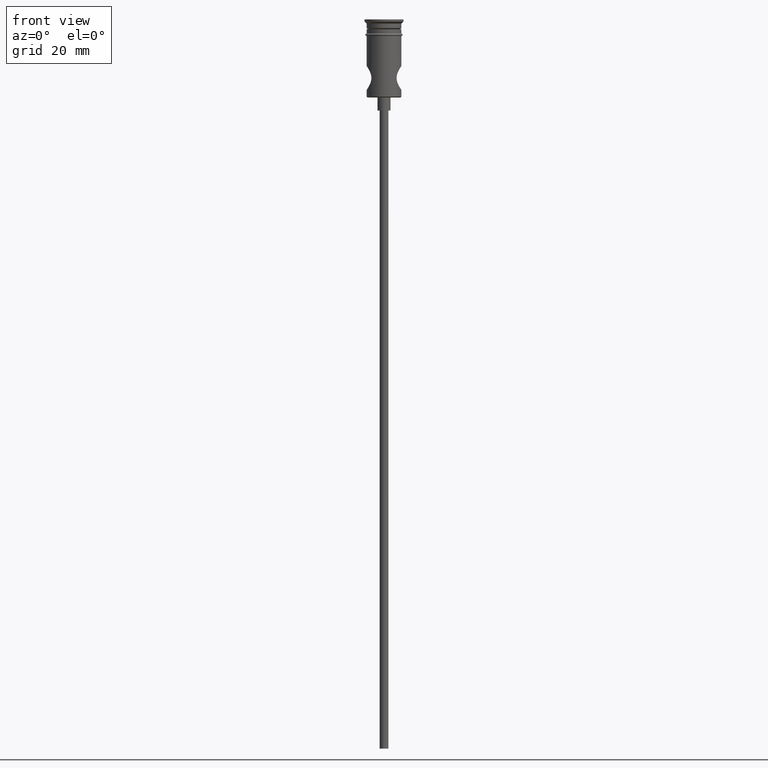
[diagram: clean part render]
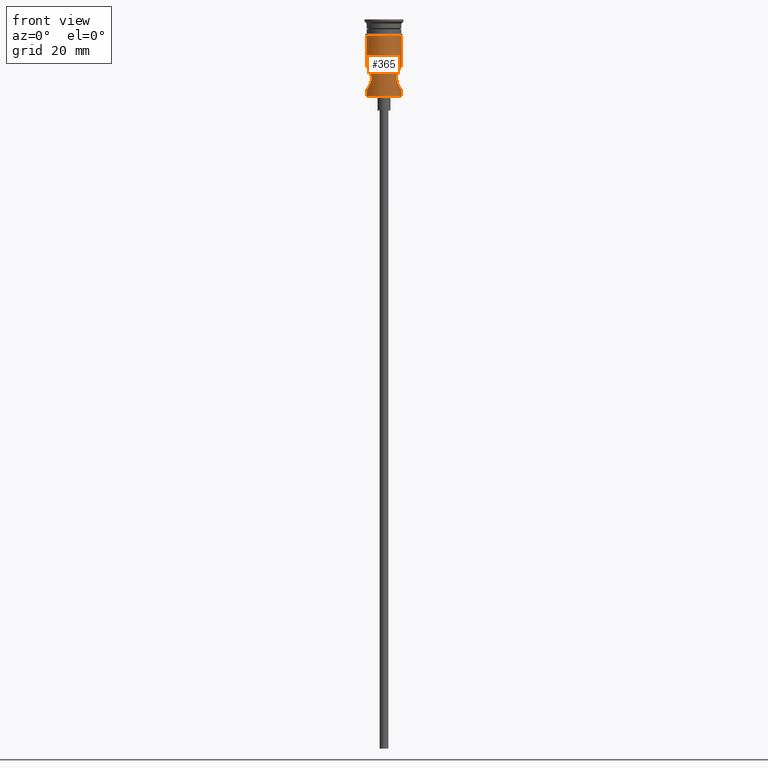
[diagram: same view with one face highlighted and labeled with its STEP entity id]
A machine part, front view. The second image highlights one B-rep face of the part: STEP entity #365.
In plain terms, the highlighted cylindrical surface (edge-blend (fillet) strip) has radius 4 mm, axis along (-0, -0, 1).
Its self-contained STEP definition (entity closure, byte-faithful):
#9 = CARTESIAN_POINT ( 'NONE',  ( 3.560899448792282929, -1.827460818524927255, -15.56227107929443143 ) ) ;
#42 = CYLINDRICAL_SURFACE ( 'NONE', #458, 4.000000000000000000 ) ;
#49 = CARTESIAN_POINT ( 'NONE',  ( -4.000000000000000000, -1.082428048190059701E-15, -16.25000000000000000 ) ) ;
#51 = CARTESIAN_POINT ( 'NONE',  ( 3.152150098412337176, -2.464125728423233408, -12.26627202958722052 ) ) ;
#88 = CARTESIAN_POINT ( 'NONE',  ( 3.805236129597703076, -1.244842054105928630, -15.95868906918809493 ) ) ;
#98 = CARTESIAN_POINT ( 'NONE',  ( 0.000000000000000000, 0.000000000000000000, -17.80000000000001137 ) ) ;
#99 = CARTESIAN_POINT ( 'NONE',  ( -3.629467468971919075, -1.704948656411081842, -11.31407162498316943 ) ) ;
#110 = CARTESIAN_POINT ( 'NONE',  ( -3.423476604098442788, -2.073510542563412162, -15.31471501676682934 ) ) ;
#112 = CARTESIAN_POINT ( 'NONE',  ( 3.356081183987128735, -2.194354300722539897, -15.19340172252557331 ) ) ;
#117 = CARTESIAN_POINT ( 'NONE',  ( -3.935590311853631729, -0.7380237449173248088, -10.84441589138536699 ) ) ;
#118 = CARTESIAN_POINT ( 'NONE',  ( -3.352571063512280070, -2.184990303520331079, -15.17882514829168805 ) ) ;
#125 = CARTESIAN_POINT ( 'NONE',  ( 3.897876258935293325, -0.9143382370299266704, -16.09976330978815895 ) ) ;
#147 = VERTEX_POINT ( 'NONE', #1293 ) ;
#161 = CARTESIAN_POINT ( 'NONE',  ( 4.000000000000000000, 0.000000000000000000, 0.000000000000000000 ) ) ;
#195 = DIRECTION ( 'NONE',  ( -0.000000000000000000, -0.000000000000000000, 1.000000000000000000 ) ) ;
#200 = CARTESIAN_POINT ( 'NONE',  ( -4.000000000000000000, 4.898875736391346734E-16, -10.75000000000000000 ) ) ;
#232 = ORIENTED_EDGE ( 'NONE', *, *, #1265, .F. ) ;
#233 = CARTESIAN_POINT ( 'NONE',  ( -3.040338712675894062, -2.600841183461505501, -14.41086802801371292 ) ) ;
#246 = CARTESIAN_POINT ( 'NONE',  ( -3.986569257409959377, -0.3752541894392961708, -10.76943406977662754 ) ) ;
#254 = VERTEX_POINT ( 'NONE', #1364 ) ;
#262 = DIRECTION ( 'NONE',  ( -0.000000000000000000, -0.000000000000000000, 1.000000000000000000 ) ) ;
#263 = DIRECTION ( 'NONE',  ( -0.000000000000000000, -0.000000000000000000, 1.000000000000000000 ) ) ;
#266 = CARTESIAN_POINT ( 'NONE',  ( 2.990619957445074029, -2.656825094483681760, -12.76649644725104515 ) ) ;
#278 = CARTESIAN_POINT ( 'NONE',  ( 3.986797965649419240, -0.3731349247757173027, -10.76909995728804681 ) ) ;
#284 = CARTESIAN_POINT ( 'NONE',  ( 3.039104102417667708, -2.602270566844717692, -12.59325405576322510 ) ) ;
#322 = CARTESIAN_POINT ( 'NONE',  ( 4.000000000000000000, 0.000000000000000000, 0.000000000000000000 ) ) ;
#323 = CARTESIAN_POINT ( 'NONE',  ( -3.758839784380466842, -1.410695475187754955, -15.88804927343668005 ) ) ;
#357 = CARTESIAN_POINT ( 'NONE',  ( -3.898332255911910238, -0.9125459904059147753, -16.10045093770546742 ) ) ;
#365 = ADVANCED_FACE ( 'NONE', ( #1025 ), #42, .T. ) ;
#368 = CARTESIAN_POINT ( 'NONE',  ( 3.758308184967917409, -1.412635338666774265, -11.11275848598740801 ) ) ;
#374 = VERTEX_POINT ( 'NONE', #200 ) ;
#376 = LINE ( 'NONE', #826, #1166 ) ;
#393 = CARTESIAN_POINT ( 'NONE',  ( 3.999999999999999112, -0.1858078852913923329, -10.75000000000000178 ) ) ;
#400 = CARTESIAN_POINT ( 'NONE',  ( -4.000000000000000000, -1.082428048190059701E-15, -16.25000000000000000 ) ) ;
#401 = VECTOR ( 'NONE', #1020, 1000.000000000000000 ) ;
#414 = CARTESIAN_POINT ( 'NONE',  ( -2.990853264625744412, -2.656566527895887209, -12.76540023414572644 ) ) ;
#424 = LINE ( 'NONE', #322, #574 ) ;
#432 = CARTESIAN_POINT ( 'NONE',  ( 3.628318813380886798, -1.691230916824618014, -15.67560887377282519 ) ) ;
#438 = CARTESIAN_POINT ( 'NONE',  ( 3.750403272509822639, -1.399798099407463248, -15.87362618509271073 ) ) ;
#453 = DIRECTION ( 'NONE',  ( -0.000000000000000000, -0.000000000000000000, 1.000000000000000000 ) ) ;
#458 = AXIS2_PLACEMENT_3D ( 'NONE', #918, #263, #755 ) ;
#484 = CARTESIAN_POINT ( 'NONE',  ( 3.627876891014071070, -1.707999379360746195, -11.31682734715131922 ) ) ;
#500 = CARTESIAN_POINT ( 'NONE',  ( -4.000000000000000000, 4.898587196589412829E-16, -3.799999999999998046 ) ) ;
#513 = CARTESIAN_POINT ( 'NONE',  ( 3.040558828618885379, -2.600578980709926213, -14.41155145748494881 ) ) ;
#515 = CARTESIAN_POINT ( 'NONE',  ( -2.904789332996817297, -2.749945260648944512, -13.68760613050835673 ) ) ;
#522 = EDGE_CURVE ( 'NONE', #708, #1162, #1362, .T. ) ;
#534 = CARTESIAN_POINT ( 'NONE',  ( -4.000000000000000000, -0.1860873315878985856, -10.74999999999999645 ) ) ;
#539 = CARTESIAN_POINT ( 'NONE',  ( -3.217982150421164089, -2.378761493287735451, -14.89073011870239327 ) ) ;
#542 = CARTESIAN_POINT ( 'NONE',  ( 2.904838189979199292, -2.749893654545319421, -13.68954574786105383 ) ) ;
#547 = CARTESIAN_POINT ( 'NONE',  ( 2.923675419418522381, -2.730320526303180895, -13.87632886117500952 ) ) ;
#549 = CIRCLE ( 'NONE', #1303, 4.000000000000000000 ) ;
#554 = CARTESIAN_POINT ( 'NONE',  ( 3.999999999999999112, -0.1884943161018475810, -16.25000000000000000 ) ) ;
#563 = CARTESIAN_POINT ( 'NONE',  ( -3.936195930800992837, -0.7345946403777908751, -16.15647894591264588 ) ) ;
#570 = CARTESIAN_POINT ( 'NONE',  ( 0.000000000000000000, 0.000000000000000000, -3.799999999999998046 ) ) ;
#574 = VECTOR ( 'NONE', #262, 1000.000000000000000 ) ;
#612 = DIRECTION ( 'NONE',  ( -1.000000000000000000, 0.000000000000000000, 0.000000000000000000 ) ) ;
#623 = ORIENTED_EDGE ( 'NONE', *, *, #1321, .F. ) ;
#636 = CARTESIAN_POINT ( 'NONE',  ( -3.422612705757198448, -2.075016451433645770, -11.68686323689984974 ) ) ;
#638 = CARTESIAN_POINT ( 'NONE',  ( -2.923708177251532092, -2.730282545867590116, -13.87638281426623799 ) ) ;
#659 = CARTESIAN_POINT ( 'NONE',  ( -2.991204009610981096, -2.656164689714076044, -14.23545628303815924 ) ) ;
#708 = VERTEX_POINT ( 'NONE', #1275 ) ;
#719 = CARTESIAN_POINT ( 'NONE',  ( 3.898650158565305723, -0.9113899793340292099, -10.89906584721212646 ) ) ;
#745 = CARTESIAN_POINT ( 'NONE',  ( -3.218452372936937866, -2.378120034323490728, -12.10820183441513365 ) ) ;
#751 = ORIENTED_EDGE ( 'NONE', *, *, #1027, .F. ) ;
#755 = DIRECTION ( 'NONE',  ( 1.000000000000000000, 0.000000000000000000, 0.000000000000000000 ) ) ;
#761 = ORIENTED_EDGE ( 'NONE', *, *, #1246, .F. ) ;
#762 = EDGE_CURVE ( 'NONE', #147, #708, #549, .T. ) ;
#769 = DIRECTION ( 'NONE',  ( -0.000000000000000000, -0.000000000000000000, 1.000000000000000000 ) ) ;
#772 = CARTESIAN_POINT ( 'NONE',  ( -3.153790941630460587, -2.462039204780214874, -14.73790887393710136 ) ) ;
#788 = CARTESIAN_POINT ( 'NONE',  ( -4.000000000000001776, -0.1887778026635980599, -16.25000000000000355 ) ) ;
#789 = AXIS2_PLACEMENT_3D ( 'NONE', #570, #453, #1024 ) ;
#793 = VERTEX_POINT ( 'NONE', #500 ) ;
#807 = CARTESIAN_POINT ( 'NONE',  ( 3.352704555667196828, -2.184805989472308418, -11.82087544688862124 ) ) ;
#818 = VECTOR ( 'NONE', #769, 1000.000000000000000 ) ;
#826 = CARTESIAN_POINT ( 'NONE',  ( -4.000000000000000000, 4.898587196589412829E-16, 0.000000000000000000 ) ) ;
#842 = CARTESIAN_POINT ( 'NONE',  ( 3.935773863085988200, -0.7372053917619743046, -10.84414365491493371 ) ) ;
#857 = CARTESIAN_POINT ( 'NONE',  ( -3.039098135780837762, -2.602305915985867024, -12.59307557713039216 ) ) ;
#874 = CARTESIAN_POINT ( 'NONE',  ( 3.986675172797201405, -0.3739722490365800511, -16.23071926583458691 ) ) ;
#886 = CARTESIAN_POINT ( 'NONE',  ( -3.757420049329555312, -1.415307548900980095, -11.11413128623153490 ) ) ;
#918 = CARTESIAN_POINT ( 'NONE',  ( 0.000000000000000000, 0.000000000000000000, 0.000000000000000000 ) ) ;
#968 = ORIENTED_EDGE ( 'NONE', *, *, #762, .T. ) ;
#993 = EDGE_CURVE ( 'NONE', #254, #1012, #424, .T. ) ;
#995 = EDGE_LOOP ( 'NONE', ( #761, #968, #1138, #232, #1216, #1356, #623, #751 ) ) ;
#1004 = EDGE_CURVE ( 'NONE', #793, #1012, #1254, .T. ) ;
#1012 = VERTEX_POINT ( 'NONE', #1243 ) ;
#1020 = DIRECTION ( 'NONE',  ( -0.000000000000000000, -0.000000000000000000, 1.000000000000000000 ) ) ;
#1024 = DIRECTION ( 'NONE',  ( 1.000000000000000000, 0.000000000000000000, 0.000000000000000000 ) ) ;
#1025 = FACE_OUTER_BOUND ( 'NONE', #995, .T. ) ;
#1027 = EDGE_CURVE ( 'NONE', #1197, #374, #1268, .T. ) ;
#1035 = CARTESIAN_POINT ( 'NONE',  ( 4.000000000000000000, -2.885398231453893753E-20, -10.75000000000000000 ) ) ;
#1072 = CARTESIAN_POINT ( 'NONE',  ( 2.922903409755361892, -2.731146823183896899, -13.12907672655106239 ) ) ;
#1092 = CARTESIAN_POINT ( 'NONE',  ( 2.904637655607715807, -2.750105472685720809, -13.31355271269106311 ) ) ;
#1097 = CARTESIAN_POINT ( 'NONE',  ( 3.935929372452465103, -0.7361346014914833535, -16.15608523965943277 ) ) ;
#1100 = CARTESIAN_POINT ( 'NONE',  ( -2.904685908915327630, -2.750054504224673124, -13.31400209527123302 ) ) ;
#1101 = LINE ( 'NONE', #1315, #818 ) ;
#1109 = CARTESIAN_POINT ( 'NONE',  ( 2.991381809801703984, -2.655967432490847546, -14.23628159399357962 ) ) ;
#1138 = ORIENTED_EDGE ( 'NONE', *, *, #522, .T. ) ;
#1162 = VERTEX_POINT ( 'NONE', #1377 ) ;
#1166 = VECTOR ( 'NONE', #195, 1000.000000000000000 ) ;
#1167 = CARTESIAN_POINT ( 'NONE',  ( 3.422360837206557704, -2.075363691986896075, -11.68737297714249124 ) ) ;
#1180 = CARTESIAN_POINT ( 'NONE',  ( 3.210458317317453236, -2.392695863158818881, -14.90116197658784358 ) ) ;
#1197 = VERTEX_POINT ( 'NONE', #400 ) ;
#1208 = CARTESIAN_POINT ( 'NONE',  ( -4.000000000000000000, 4.898875736391346734E-16, -10.75000000000000000 ) ) ;
#1216 = ORIENTED_EDGE ( 'NONE', *, *, #993, .T. ) ;
#1230 = CARTESIAN_POINT ( 'NONE',  ( -3.986715318769655791, -0.3733211196991539360, -16.23077663263318726 ) ) ;
#1243 = CARTESIAN_POINT ( 'NONE',  ( 4.000000000000000000, 0.000000000000000000, -3.799999999999998046 ) ) ;
#1246 = EDGE_CURVE ( 'NONE', #147, #1197, #376, .T. ) ;
#1247 = CARTESIAN_POINT ( 'NONE',  ( 3.217675228092755635, -2.379195489181981316, -12.10994054056969560 ) ) ;
#1254 = CIRCLE ( 'NONE', #789, 4.000000000000000000 ) ;
#1263 = B_SPLINE_CURVE_WITH_KNOTS ( 'NONE', 3,
 ( #1035, #393, #278, #842, #719, #368, #484, #1167, #807, #1247, #51, #284, #266, #1072, #1092, #542, #547, #1109, #513, #1180, #112, #9, #432, #438, #88, #125, #1097, #874, #554, #1318 ),
 .UNSPECIFIED., .F., .F.,
 ( 4, 2, 2, 2, 2, 2, 2, 2, 2, 2, 2, 2, 2, 2, 4 ),
 ( 0.008916109102135036726, 0.009472529091595908307, 0.01002894908105677989, 0.01114178905997852131, 0.01169820904943938943, 0.01225462903890025754, 0.01281104902836112565, 0.01336746901782199376, 0.01392388900728286361, 0.01448030899674372998, 0.01559314897566546620, 0.01614956896512633605, 0.01670598895458720243, 0.01726240894404806880, 0.01781882893350893518 ),
 .UNSPECIFIED. ) ;
#1265 = EDGE_CURVE ( 'NONE', #254, #1162, #1263, .T. ) ;
#1268 = B_SPLINE_CURVE_WITH_KNOTS ( 'NONE', 3,
 ( #49, #788, #1230, #563, #357, #323, #1325, #110, #118, #539, #772, #233, #659, #638, #515, #1100, #1407, #414, #857, #1297, #745, #1335, #636, #99, #886, #1339, #117, #246, #534, #1208 ),
 .UNSPECIFIED., .F., .F.,
 ( 4, 2, 2, 2, 2, 2, 2, 2, 2, 2, 2, 2, 2, 2, 4 ),
 ( 1.048010074117292363E-18, 0.0005572568188834413133, 0.001114513637766881542, 0.002229027275533760049, 0.002786284094417199302, 0.003343540913300638122, 0.003900797732184077375, 0.004458054551067516628, 0.005015311369950955014, 0.005572568188834395135, 0.006129825007717833521, 0.006687081826601272774, 0.007801595464368153883, 0.008358852283251595738, 0.008916109102135036726 ),
 .UNSPECIFIED. ) ;
#1275 = CARTESIAN_POINT ( 'NONE',  ( 4.000000000000000000, 0.000000000000000000, -17.80000000000001137 ) ) ;
#1293 = CARTESIAN_POINT ( 'NONE',  ( -4.000000000000000000, 4.898587196589412829E-16, -17.80000000000001137 ) ) ;
#1297 = CARTESIAN_POINT ( 'NONE',  ( -3.153159797772616901, -2.462863546563664574, -12.26354897380435460 ) ) ;
#1303 = AXIS2_PLACEMENT_3D ( 'NONE', #98, #1311, #612 ) ;
#1311 = DIRECTION ( 'NONE',  ( -0.000000000000000000, -0.000000000000000000, 1.000000000000000000 ) ) ;
#1315 = CARTESIAN_POINT ( 'NONE',  ( -4.000000000000000000, 4.898587196589412829E-16, 0.000000000000000000 ) ) ;
#1318 = CARTESIAN_POINT ( 'NONE',  ( 4.000000000000000000, 1.082428048190059701E-15, -16.25000000000000000 ) ) ;
#1321 = EDGE_CURVE ( 'NONE', #374, #793, #1101, .T. ) ;
#1325 = CARTESIAN_POINT ( 'NONE',  ( -3.628548934766043121, -1.706512450506086465, -15.68423018591682805 ) ) ;
#1335 = CARTESIAN_POINT ( 'NONE',  ( -3.352887962353420903, -2.184498314583853240, -11.82055838298663275 ) ) ;
#1339 = CARTESIAN_POINT ( 'NONE',  ( -3.898469200194268236, -0.9122845588995921462, -10.89933121525977811 ) ) ;
#1356 = ORIENTED_EDGE ( 'NONE', *, *, #1004, .F. ) ;
#1362 = LINE ( 'NONE', #161, #401 ) ;
#1364 = CARTESIAN_POINT ( 'NONE',  ( 4.000000000000000000, -2.885398231453893753E-20, -10.75000000000000000 ) ) ;
#1377 = CARTESIAN_POINT ( 'NONE',  ( 4.000000000000000000, 1.082428048190059701E-15, -16.25000000000000000 ) ) ;
#1407 = CARTESIAN_POINT ( 'NONE',  ( -2.922849711538092699, -2.731208254861018148, -13.12921164836393650 ) ) ;